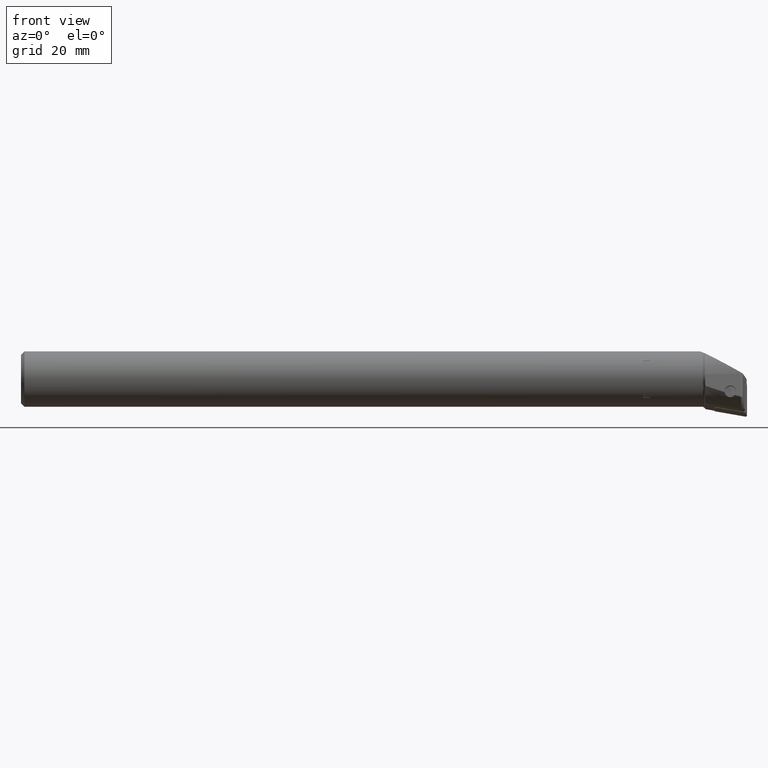
[diagram: clean part render]
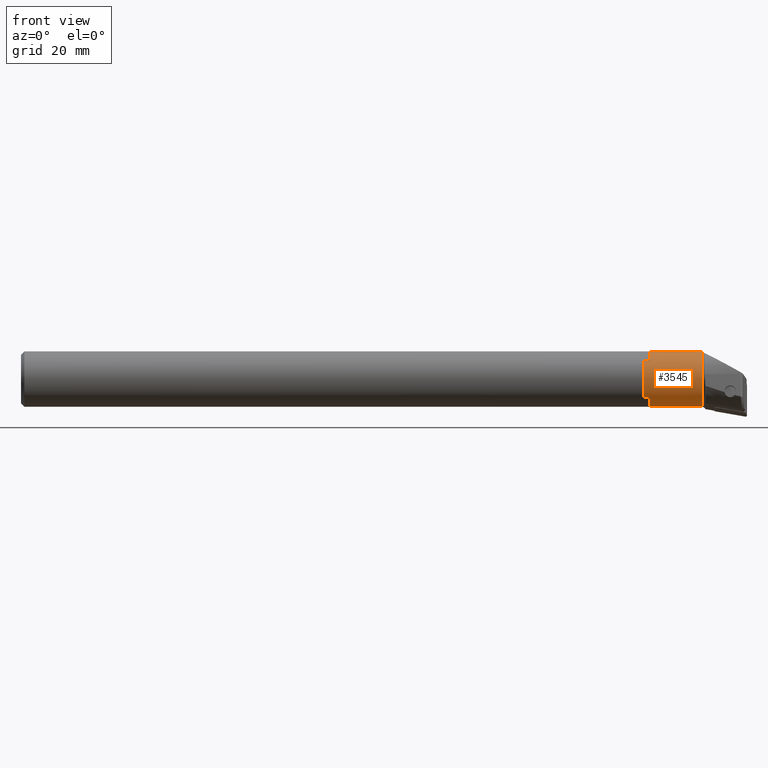
[diagram: same view with one face highlighted and labeled with its STEP entity id]
A machine part, front view. The second image highlights one B-rep face of the part: STEP entity #3545.
In plain terms, the highlighted cylindrical surface (edge-blend (fillet) strip) has radius 8 mm, axis along (-1, -0, 0).
Its self-contained STEP definition (entity closure, byte-faithful):
#74 = EDGE_CURVE ( 'NONE', #1502, #1548, #972, .T. ) ;
#78 = EDGE_CURVE ( 'NONE', #1508, #1732, #1210, .T. ) ;
#80 = EDGE_CURVE ( 'NONE', #1561, #1680, #1209, .T. ) ;
#81 = EDGE_CURVE ( 'NONE', #1680, #1502, #1204, .T. ) ;
#82 = EDGE_CURVE ( 'NONE', #1548, #1508, #1203, .T. ) ;
#89 = EDGE_CURVE ( 'NONE', #1471, #1744, #3403, .T. ) ;
#129 = EDGE_CURVE ( 'NONE', #1648, #1744, #1145, .T. ) ;
#536 = CARTESIAN_POINT ( 'NONE',  ( -1.960577716317849100, -2.684006449943982100E-015, -8.000000000000012400 ) ) ;
#537 = DIRECTION ( 'NONE',  ( -1.000000000000000000, -1.081007496269136300E-016, 4.550406820893250800E-017 ) ) ;
#548 = CARTESIAN_POINT ( 'NONE',  ( -1.960577716317851700, -1.887367049861618700E-015, 8.000000000000012400 ) ) ;
#549 = DIRECTION ( 'NONE',  ( -1.000000000000000000, -1.081007496269136300E-016, 4.550406820893250800E-017 ) ) ;
#701 = CARTESIAN_POINT ( 'NONE',  ( 2.775557561562891400E-014, -6.025000000000014600, 5.263019570550732800 ) ) ;
#709 = CARTESIAN_POINT ( 'NONE',  ( 16.25487764449842100, 8.173732943820267100E-017, 8.000000000000012400 ) ) ;
#726 = CARTESIAN_POINT ( 'NONE',  ( 1.949999999999993500, -6.025000000000019900, -5.263019570550734500 ) ) ;
#745 = CARTESIAN_POINT ( 'NONE',  ( -6.938893903907228400E-015, -6.025000000000014600, -5.263019570550732800 ) ) ;
#751 = CARTESIAN_POINT ( 'NONE',  ( 1.950000000000000800, -7.457606822343773100E-016, 8.000000000000005300 ) ) ;
#917 = LINE ( 'NONE', #548, #935 ) ;
#933 = VECTOR ( 'NONE', #537, 1000.000000000000000 ) ;
#935 = VECTOR ( 'NONE', #549, 1000.000000000000000 ) ;
#972 = CIRCLE ( 'NONE', #2808, 8.000000000000012400 ) ;
#988 = LINE ( 'NONE', #536, #933 ) ;
#1145 = CIRCLE ( 'NONE', #2821, 8.000000000000012400 ) ;
#1201 = VECTOR ( 'NONE', #2388, 1000.000000000000000 ) ;
#1202 = VECTOR ( 'NONE', #2377, 1000.000000000000000 ) ;
#1203 = LINE ( 'NONE', #2387, #1201 ) ;
#1204 = LINE ( 'NONE', #2381, #1202 ) ;
#1209 = CIRCLE ( 'NONE', #2811, 8.000000000000012400 ) ;
#1210 = CIRCLE ( 'NONE', #2810, 8.000000000000012400 ) ;
#1297 = ORIENTED_EDGE ( 'NONE', *, *, #78, .T. ) ;
#1298 = ORIENTED_EDGE ( 'NONE', *, *, #74, .T. ) ;
#1300 = ORIENTED_EDGE ( 'NONE', *, *, #89, .F. ) ;
#1302 = ORIENTED_EDGE ( 'NONE', *, *, #82, .T. ) ;
#1303 = ORIENTED_EDGE ( 'NONE', *, *, #81, .T. ) ;
#1305 = ORIENTED_EDGE ( 'NONE', *, *, #1433, .F. ) ;
#1310 = ORIENTED_EDGE ( 'NONE', *, *, #1440, .T. ) ;
#1327 = ORIENTED_EDGE ( 'NONE', *, *, #129, .T. ) ;
#1329 = ORIENTED_EDGE ( 'NONE', *, *, #80, .T. ) ;
#1433 = EDGE_CURVE ( 'NONE', #1648, #1732, #988, .T. ) ;
#1440 = EDGE_CURVE ( 'NONE', #1471, #1561, #917, .T. ) ;
#1471 = VERTEX_POINT ( 'NONE', #709 ) ;
#1502 = VERTEX_POINT ( 'NONE', #701 ) ;
#1508 = VERTEX_POINT ( 'NONE', #726 ) ;
#1548 = VERTEX_POINT ( 'NONE', #745 ) ;
#1561 = VERTEX_POINT ( 'NONE', #751 ) ;
#1648 = VERTEX_POINT ( 'NONE', #5464 ) ;
#1680 = VERTEX_POINT ( 'NONE', #3674 ) ;
#1718 = EDGE_LOOP ( 'NONE', ( #1305, #1327, #1300, #1310, #1329, #1303, #1298, #1302, #1297 ) ) ;
#1732 = VERTEX_POINT ( 'NONE', #3694 ) ;
#1744 = VERTEX_POINT ( 'NONE', #3714 ) ;
#2367 = CARTESIAN_POINT ( 'NONE',  ( 0.0000000000000000000, 0.0000000000000000000, 0.0000000000000000000 ) ) ;
#2368 = DIRECTION ( 'NONE',  ( 1.000000000000000000, 1.081007496269136300E-016, -4.550406820893250800E-017 ) ) ;
#2369 = DIRECTION ( 'NONE',  ( 1.358665727472023600E-016, -1.110223024625154800E-016, -1.000000000000000000 ) ) ;
#2377 = DIRECTION ( 'NONE',  ( -1.000000000000000000, -1.081007496269136300E-016, 4.550406820893250800E-017 ) ) ;
#2378 = CARTESIAN_POINT ( 'NONE',  ( 1.950000000000000400, -1.626578064585446100E-015, 4.420405091854594300E-015 ) ) ;
#2379 = DIRECTION ( 'NONE',  ( 1.000000000000000000, 1.081007496269136300E-016, -4.550406820893250800E-017 ) ) ;
#2380 = DIRECTION ( 'NONE',  ( 1.355252715606878300E-016, -1.110223024625154800E-016, -1.000000000000000000 ) ) ;
#2381 = CARTESIAN_POINT ( 'NONE',  ( -1.960577716317843500, -6.025000000000011000, 5.263019570550747000 ) ) ;
#2384 = CARTESIAN_POINT ( 'NONE',  ( 1.950000000000000400, -1.626578064585446100E-015, 4.420405091854594300E-015 ) ) ;
#2385 = DIRECTION ( 'NONE',  ( 1.000000000000000000, 1.081007496269136300E-016, -4.550406820893250800E-017 ) ) ;
#2386 = DIRECTION ( 'NONE',  ( 1.355252715606878300E-016, -1.110223024625154800E-016, -1.000000000000000000 ) ) ;
#2387 = CARTESIAN_POINT ( 'NONE',  ( -1.960577716317878100, -6.025000000000019000, -5.263019570550730100 ) ) ;
#2388 = DIRECTION ( 'NONE',  ( 1.000000000000000000, 1.081007496269136300E-016, -4.550406820893250800E-017 ) ) ;
#2402 = CARTESIAN_POINT ( 'NONE',  ( 16.39133850596067200, -0.7493444455651925300, 8.000000000000019500 ) ) ;
#2407 = CARTESIAN_POINT ( 'NONE',  ( 16.70844894808393700, -1.491352869961307000, 7.895402694945831400 ) ) ;
#2412 = CARTESIAN_POINT ( 'NONE',  ( 16.25487764449842100, 8.173732943820267100E-017, 8.000000000000012400 ) ) ;
#2414 = CARTESIAN_POINT ( 'NONE',  ( 17.20000000000004900, -2.211496868951230900, 7.688256083054159100 ) ) ;
#2622 = AXIS2_PLACEMENT_3D ( 'NONE', #2899, #2898, #2894 ) ;
#2628 = CARTESIAN_POINT ( 'NONE',  ( 17.20000000000002100, -2.314795315236983800E-015, 2.357979322019447100E-014 ) ) ;
#2630 = DIRECTION ( 'NONE',  ( -1.000000000000000000, -1.081007496269136300E-016, 4.550406820893250800E-017 ) ) ;
#2631 = DIRECTION ( 'NONE',  ( 0.0000000000000000000, 1.110223024625154800E-016, 1.000000000000000000 ) ) ;
#2808 = AXIS2_PLACEMENT_3D ( 'NONE', #2367, #2368, #2369 ) ;
#2810 = AXIS2_PLACEMENT_3D ( 'NONE', #2378, #2379, #2380 ) ;
#2811 = AXIS2_PLACEMENT_3D ( 'NONE', #2384, #2385, #2386 ) ;
#2821 = AXIS2_PLACEMENT_3D ( 'NONE', #2628, #2630, #2631 ) ;
#2894 = DIRECTION ( 'NONE',  ( -1.626303258728254200E-016, 1.110223024625154800E-016, 1.000000000000000000 ) ) ;
#2898 = DIRECTION ( 'NONE',  ( -1.000000000000000000, -1.081007496269136300E-016, 4.550406820893250800E-017 ) ) ;
#2899 = CARTESIAN_POINT ( 'NONE',  ( -1.960577716317850400, -2.775545469561743900E-015, -9.827535019835640300E-017 ) ) ;
#3403 =( BOUNDED_CURVE ( )  B_SPLINE_CURVE ( 3, ( #2412, #2402, #2407, #2414 ),
 .UNSPECIFIED., .F., .F. ) 
 B_SPLINE_CURVE_WITH_KNOTS ( ( 4, 4 ),
 ( 0.1042873961365966000, 0.3843721582058724500 ),
 .UNSPECIFIED. ) 
 CURVE ( )  GEOMETRIC_REPRESENTATION_ITEM ( )  RATIONAL_B_SPLINE_CURVE ( ( 1.000000000000000000, 0.9934733875611829700, 0.9934733875611829700, 1.000000000000000000 ) ) 
 REPRESENTATION_ITEM ( '' )  );
#3545 = ADVANCED_FACE ( 'NONE', ( #4967 ), #4673, .T. ) ;
#3674 = CARTESIAN_POINT ( 'NONE',  ( 1.950000000000028200, -6.025000000000022600, 5.263019570550735400 ) ) ;
#3694 = CARTESIAN_POINT ( 'NONE',  ( 1.950000000000000000, -1.542400082316737900E-015, -7.999999999999994700 ) ) ;
#3714 = CARTESIAN_POINT ( 'NONE',  ( 17.20000000000004900, -2.211496868951230900, 7.688256083054159100 ) ) ;
#4673 = CYLINDRICAL_SURFACE ( 'NONE', #2622, 8.000000000000012400 ) ;
#4967 = FACE_OUTER_BOUND ( 'NONE', #1718, .T. ) ;
#5464 = CARTESIAN_POINT ( 'NONE',  ( 17.20000000000002100, -1.542400082316739700E-015, -7.999999999999976000 ) ) ;